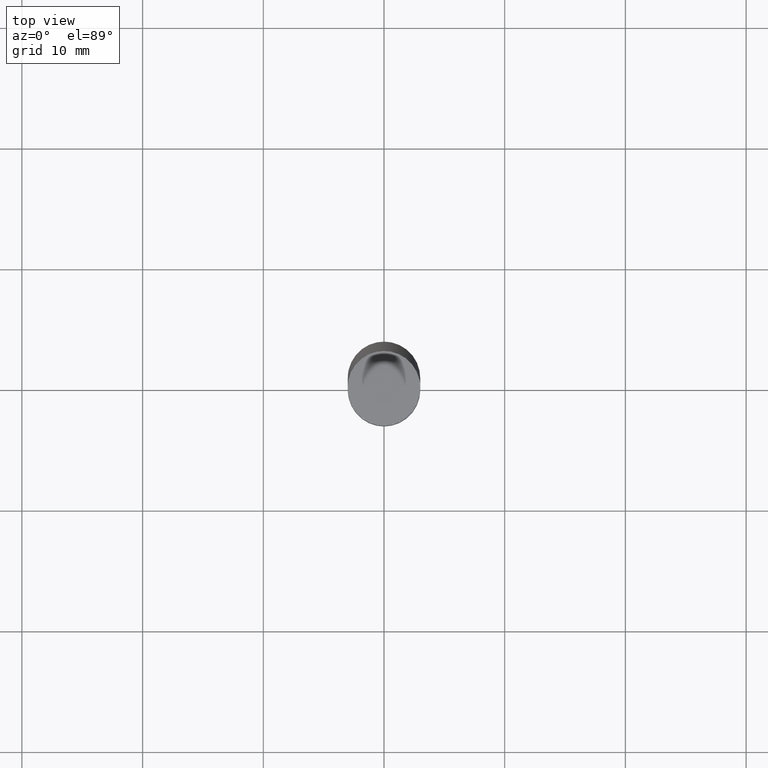
[diagram: clean part render]
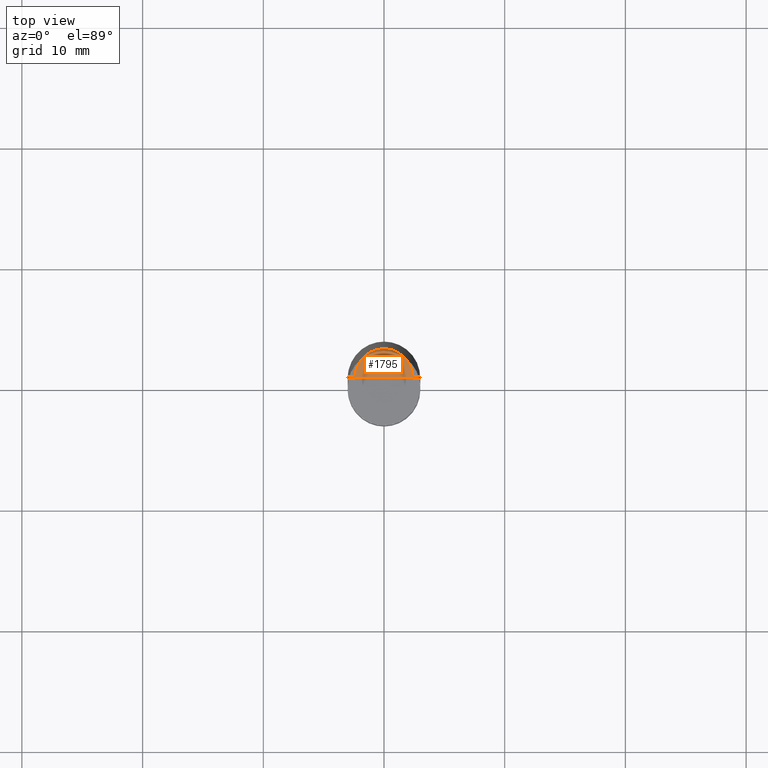
[diagram: same view with one face highlighted and labeled with its STEP entity id]
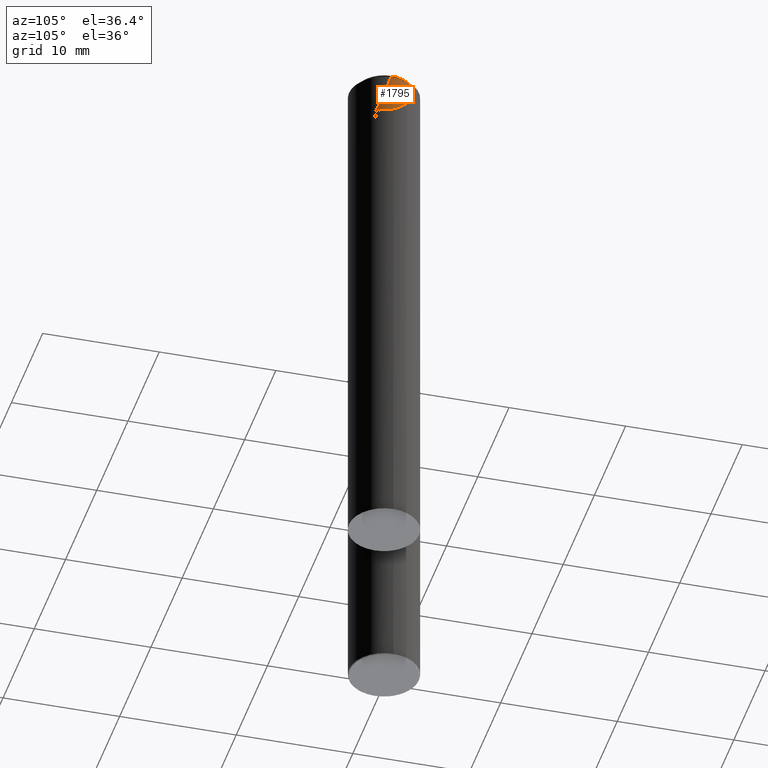
[diagram: same view with one face highlighted and labeled with its STEP entity id]
A machine part, top view. The second image highlights one B-rep face of the part: STEP entity #1795.
A second angle (auxiliary view) of the same face is appended — the face is thin or edge-on in the first view.
In plain terms, the highlighted face is a freeform B-spline surface patch.
Its self-contained STEP definition (entity closure, byte-faithful):
#1555=CARTESIAN_POINT('',(2.4,0.0,45.0));
#1556=CARTESIAN_POINT('',(2.4,2.4,45.0));
#1557=CARTESIAN_POINT('',(0.0,2.4,45.0));
#1558=CARTESIAN_POINT('',(-2.4,2.4,45.0));
#1559=CARTESIAN_POINT('',(-2.4,0.0,45.0));
#1560=CARTESIAN_POINT('',(0.0,0.0,45.0));
#1780=(
BOUNDED_SURFACE()
B_SPLINE_SURFACE(1,2,(
(#1555,#1556,#1557,#1558,#1559),
(#1560,#1560,#1560,#1560,#1560)
), .UNSPECIFIED.,.F.,.F.,.F.)
B_SPLINE_SURFACE_WITH_KNOTS((2,2),(3,2,3),(
0.0,1.0),(
0.0,0.5,1.0), .UNSPECIFIED.)
GEOMETRIC_REPRESENTATION_ITEM()
RATIONAL_B_SPLINE_SURFACE(((1.0,0.707106781187,1.0,0.707106781187,1.0),
(1.0,0.707106781187,1.0,0.707106781187,1.0)
))
REPRESENTATION_ITEM('')
SURFACE()
);
#1781=(
BOUNDED_CURVE()
B_SPLINE_CURVE(1,(#1560,#1555),.UNSPECIFIED.,.F.,.F.)
B_SPLINE_CURVE_WITH_KNOTS((2,2),
(0.0,1.0),.UNSPECIFIED.)
CURVE()
GEOMETRIC_REPRESENTATION_ITEM()
RATIONAL_B_SPLINE_CURVE((1.0,1.0))
REPRESENTATION_ITEM('')
);
#1782=(
BOUNDED_CURVE()
B_SPLINE_CURVE(2,(#1555,#1556,#1557,#1558,#1559),.UNSPECIFIED.,.F.,.F.)
B_SPLINE_CURVE_WITH_KNOTS((3,2,3),
(0.0,0.5,1.0),.UNSPECIFIED.)
CURVE()
GEOMETRIC_REPRESENTATION_ITEM()
RATIONAL_B_SPLINE_CURVE((1.0,0.707106781187,1.0,0.707106781187,1.0))
REPRESENTATION_ITEM('')
);
#1783=(
BOUNDED_CURVE()
B_SPLINE_CURVE(1,(#1559,#1560),.UNSPECIFIED.,.F.,.F.)
B_SPLINE_CURVE_WITH_KNOTS((2,2),
(0.0,1.0),.UNSPECIFIED.)
CURVE()
GEOMETRIC_REPRESENTATION_ITEM()
RATIONAL_B_SPLINE_CURVE((1.0,1.0))
REPRESENTATION_ITEM('')
);
#1784=VERTEX_POINT('',#1555);
#1785=VERTEX_POINT('',#1559);
#1786=VERTEX_POINT('',#1560);
#1787=EDGE_CURVE('',#1786,#1784,#1781,.T.);
#1788=EDGE_CURVE('',#1784,#1785,#1782,.T.);
#1789=EDGE_CURVE('',#1785,#1786,#1783,.T.);
#1790=ORIENTED_EDGE('',*,*,#1787,.T.);
#1791=ORIENTED_EDGE('',*,*,#1788,.T.);
#1792=ORIENTED_EDGE('',*,*,#1789,.T.);
#1793=EDGE_LOOP('',(#1790,#1791,#1792));
#1794=FACE_OUTER_BOUND('',#1793,.T.);
#1795=ADVANCED_FACE('',(#1794),#1780,.T.);